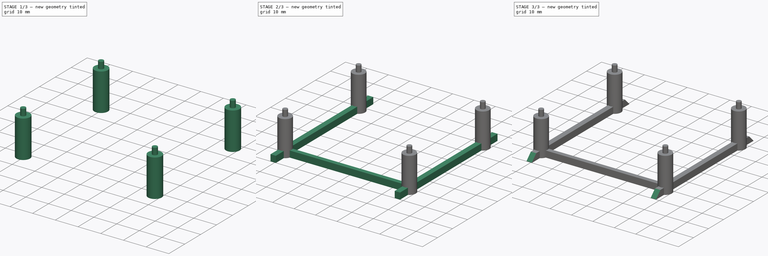
[diagram: build sequence overview — one tinted view per stage of 3, left to right]
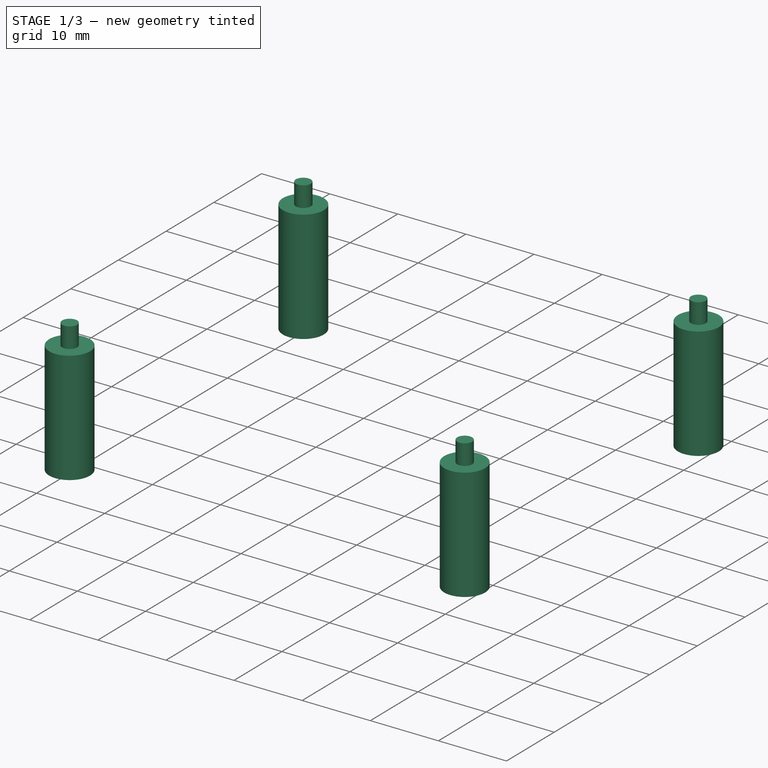
[diagram: stage 1 of 3 — iso view after this stage's code; geometry added in this stage tinted green]
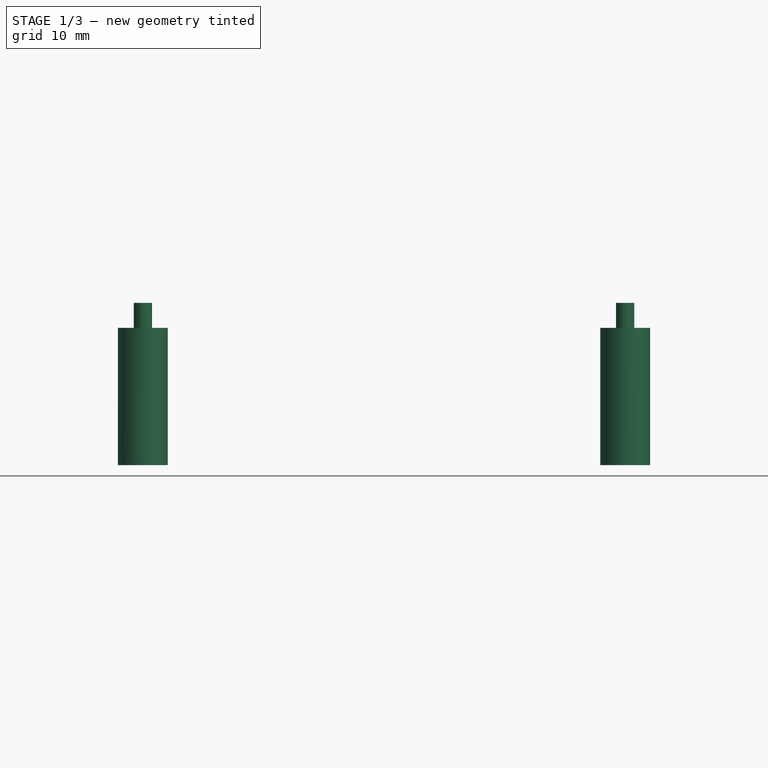
[diagram: stage 1 of 3 — front view after this stage's code; geometry added in this stage tinted green]
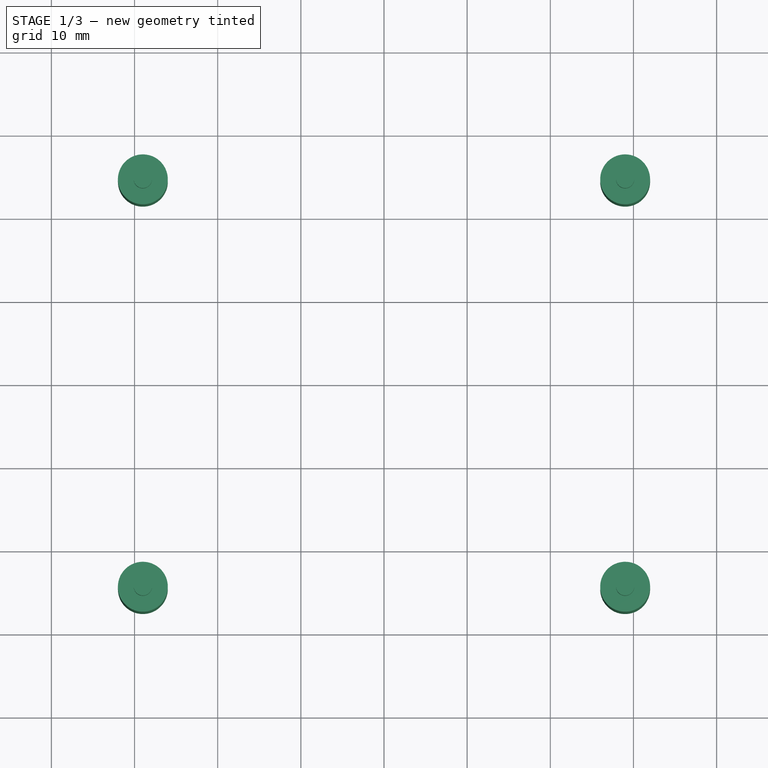
[diagram: stage 1 of 3 — top view after this stage's code; geometry added in this stage tinted green]
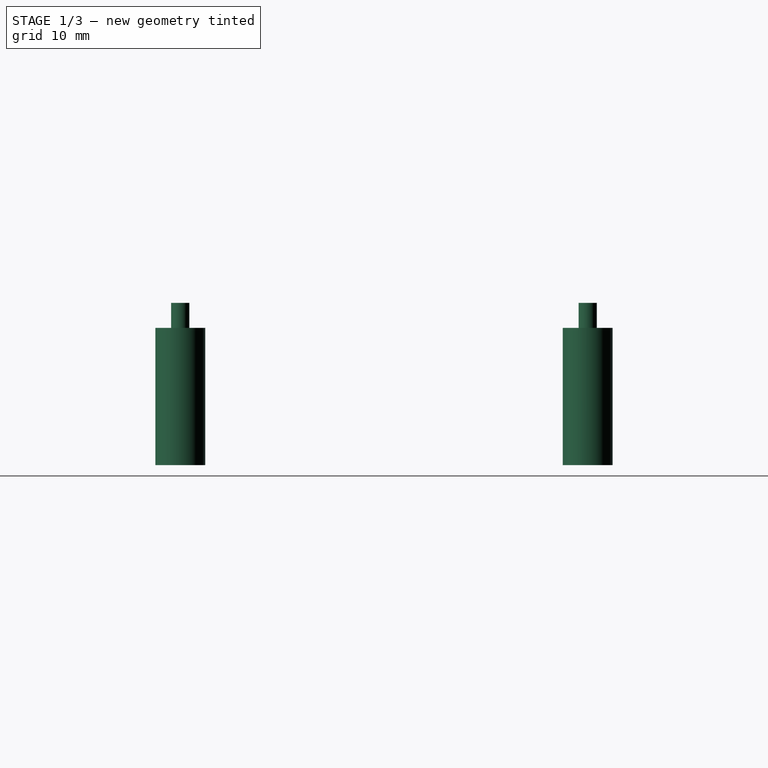
[diagram: stage 1 of 3 — right view after this stage's code; geometry added in this stage tinted green]
FCSTD DOCUMENT  (FreeCAD 0.16R6703 (Git))
Label: abstandh
License: All rights reserved
LicenseURL: http://en.wikipedia.org/wiki/All_rights_reserved
objects: Sketcher::SketchObject×3, PartDesign::Pad×3, Part::MultiFuse×1, PartDesign::Chamfer×1
note: 11 computed .brp shape members not serialized (recipe doc carries the construction recipe); baked Part::Feature solids carry a one-line shape summary decoded from their .brp

FEATURE [PartDesign::Pad] Pad001
  Length = 16.5
  Length2 = 100
  Sketch = -> Sketch001
  Type = 0
FEATURE [Sketcher::SketchObject] Sketch002
  sketch-geometry (4):
    g0: Circle CenterX=-29 CenterY=24.5 CenterZ=0 NormalX=0 NormalY=0 NormalZ=1 Radius=1.1
    g1: Circle CenterX=-29 CenterY=-24.5 CenterZ=0 NormalX=0 NormalY=0 NormalZ=1 Radius=1.1
    g2: Circle CenterX=29 CenterY=-24.5 CenterZ=0 NormalX=0 NormalY=0 NormalZ=1 Radius=1.1
    g3: Circle CenterX=29 CenterY=24.5 CenterZ=0 NormalX=0 NormalY=0 NormalZ=1 Radius=1.1
  constraints (10):
    c: Symmetric(g0,g3,g-2)
    c: DistanceY(g1,g2) = 0
    c: Symmetric(g1,g0,g-1)
    c: Symmetric(g3,g2,g-1)
    c: DistanceX(g0,g3) = 58
    c: DistanceY(g2,g3) = 49
    c: Equal(g1,g2)
    c: Equal(g2,g3)
    c: Equal(g3,g0)
    c: Radius(g3) = 1.1
FEATURE [PartDesign::Pad] Pad002
  Length = 19.5
  Length2 = 100
  Sketch = -> Sketch002
  Type = 0
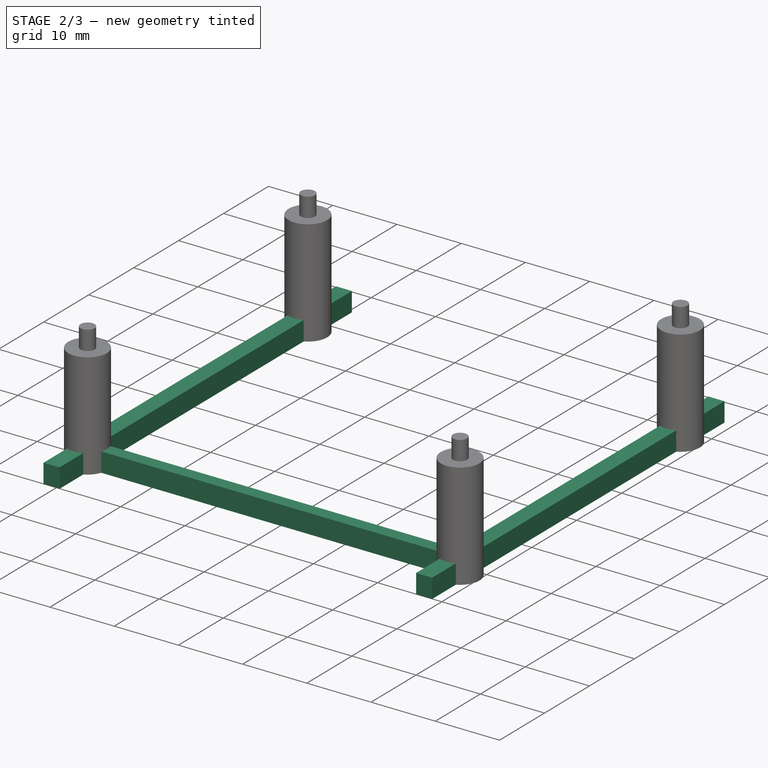
[diagram: stage 2 of 3 — iso view after this stage's code; geometry added in this stage tinted green]
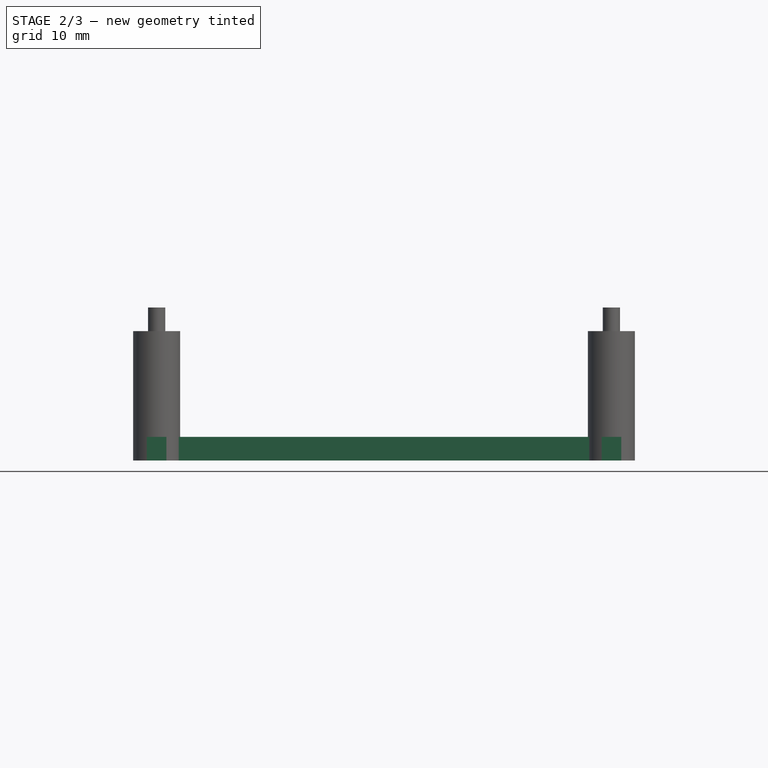
[diagram: stage 2 of 3 — front view after this stage's code; geometry added in this stage tinted green]
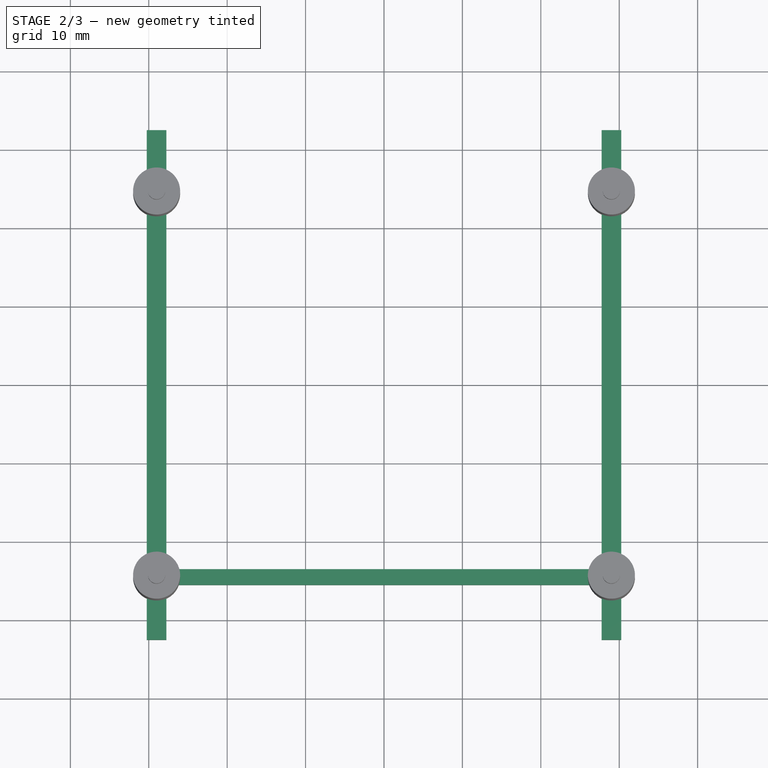
[diagram: stage 2 of 3 — top view after this stage's code; geometry added in this stage tinted green]
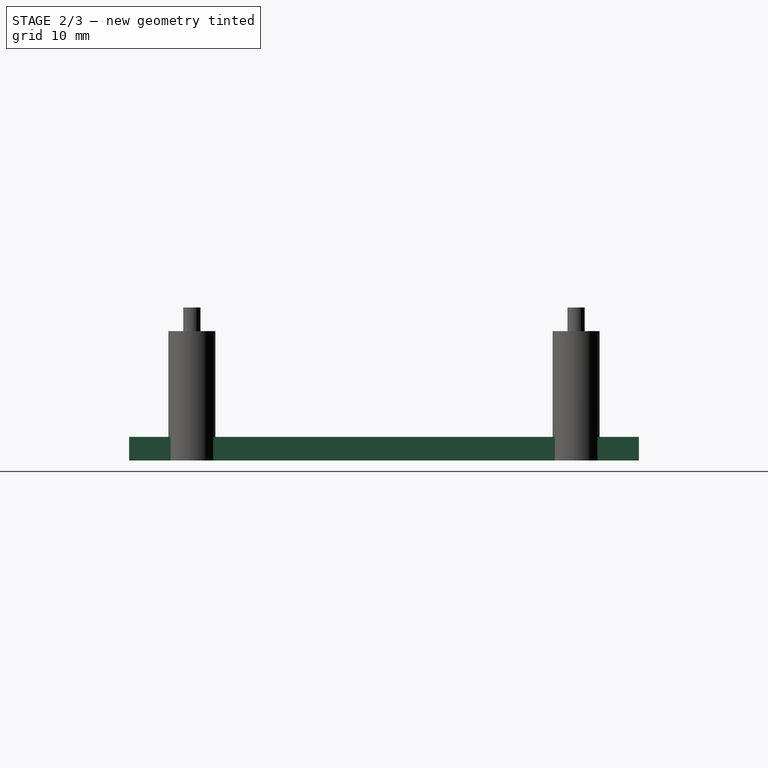
[diagram: stage 2 of 3 — right view after this stage's code; geometry added in this stage tinted green]
FEATURE [Sketcher::SketchObject] Sketch
  sketch-geometry (12):
    g0: LineSegment StartX=-30.25 StartY=32.5 StartZ=0 EndX=-27.75 EndY=32.5 EndZ=0
    g1: LineSegment StartX=-27.75 StartY=32.5 StartZ=0 EndX=-27.75 EndY=-32.5 EndZ=0
    g2: LineSegment StartX=-27.75 StartY=-32.5 StartZ=0 EndX=-30.25 EndY=-32.5 EndZ=0
    g3: LineSegment StartX=-30.25 StartY=-32.5 StartZ=0 EndX=-30.25 EndY=32.5 EndZ=0
    g4: LineSegment StartX=27.75 StartY=32.5 StartZ=0 EndX=30.25 EndY=32.5 EndZ=0
    g5: LineSegment StartX=30.25 StartY=32.5 StartZ=0 EndX=30.25 EndY=-32.5 EndZ=0
    g6: LineSegment StartX=30.25 StartY=-32.5 StartZ=0 EndX=27.75 EndY=-32.5 EndZ=0
    g7: LineSegment StartX=27.75 StartY=-32.5 StartZ=0 EndX=27.75 EndY=32.5 EndZ=0
    g8: LineSegment StartX=-27.75 StartY=-23.5 StartZ=0 EndX=27.75 EndY=-23.5 EndZ=0
    g9: LineSegment StartX=27.75 StartY=-23.5 StartZ=0 EndX=27.75 EndY=-25.5 EndZ=0
    g10: LineSegment StartX=27.75 StartY=-25.5 StartZ=0 EndX=-27.75 EndY=-25.5 EndZ=0
    g11: LineSegment StartX=-27.75 StartY=-25.5 StartZ=0 EndX=-27.75 EndY=-23.5 EndZ=0
  constraints (35):
    c: Coincident(g0,g1)
    c: Coincident(g1,g2)
    c: Coincident(g2,g3)
    c: Coincident(g3,g0)
    c: Horizontal(g0)
    c: Horizontal(g2)
    c: Vertical(g1)
    c: Vertical(g3)
    c: Coincident(g4,g5)
    c: Coincident(g5,g6)
    c: Coincident(g6,g7)
    c: Coincident(g7,g4)
    c: Horizontal(g4)
    c: Horizontal(g6)
    c: Vertical(g5)
    c: Vertical(g7)
    c: Coincident(g8,g9)
    c: Coincident(g9,g10)
    c: Coincident(g10,g11)
    c: Coincident(g11,g8)
    c: Horizontal(g8)
    c: Horizontal(g10)
    c: Vertical(g9)
    c: Vertical(g11)
    c: PointOnObject(g9,g7)
    c: PointOnObject(g8,g1)
    c: Symmetric(g0,g4,g-2)
    c: Symmetric(g0,g4,g-2)
    c: Symmetric(g5,g4,g-1)
    c: Equal(g5,g3)
    c: DistanceX(g6,g5) = 2.5
    c: DistanceY(g2,g0) = 65
    c: DistanceY(g8,g-1) = 23.5
    c: DistanceY(g10,g8) = 2
    c: DistanceX(g1,g6) = 55.5
FEATURE [Sketcher::SketchObject] Sketch001
  sketch-geometry (4):
    g0: Circle CenterX=-29 CenterY=24.5 CenterZ=0 NormalX=0 NormalY=0 NormalZ=1 Radius=3
    g1: Circle CenterX=-29 CenterY=-24.5 CenterZ=0 NormalX=0 NormalY=0 NormalZ=1 Radius=3
    g2: Circle CenterX=29 CenterY=-24.5 CenterZ=0 NormalX=0 NormalY=0 NormalZ=1 Radius=3
    g3: Circle CenterX=29 CenterY=24.5 CenterZ=0 NormalX=0 NormalY=0 NormalZ=1 Radius=3
  constraints (10):
    c: Symmetric(g0,g3,g-2)
    c: DistanceY(g1,g2) = 0
    c: Symmetric(g1,g0,g-1)
    c: Symmetric(g3,g2,g-1)
    c: DistanceX(g0,g3) = 58
    c: DistanceY(g2,g3) = 49
    c: Equal(g1,g2)
    c: Equal(g2,g3)
    c: Equal(g3,g0)
    c: Radius(g3) = 3
FEATURE [PartDesign::Pad] Pad
  Length = 3
  Length2 = 100
  Sketch = -> Sketch
  Type = 0
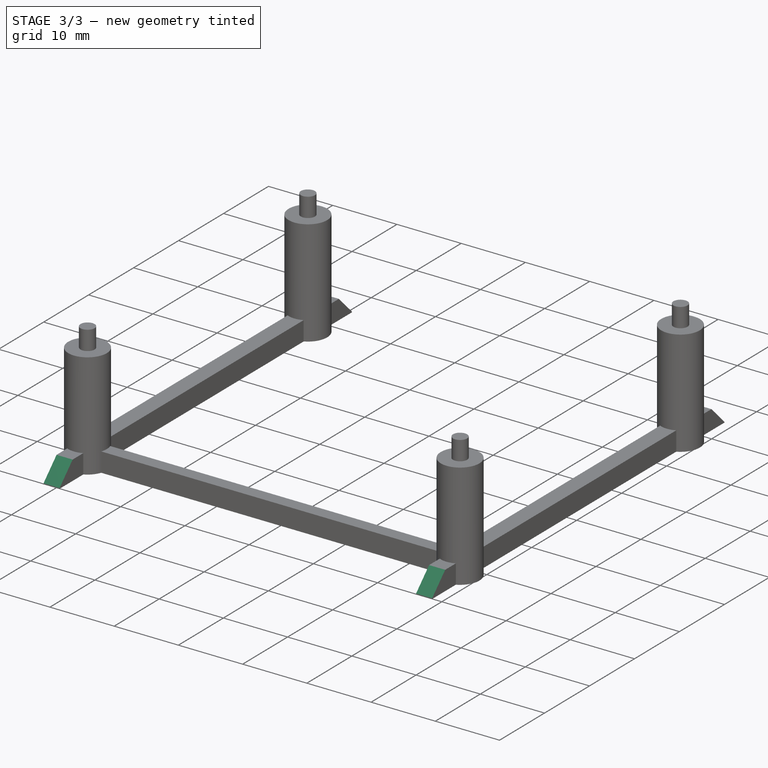
[diagram: stage 3 of 3 — iso view after this stage's code; geometry added in this stage tinted green]
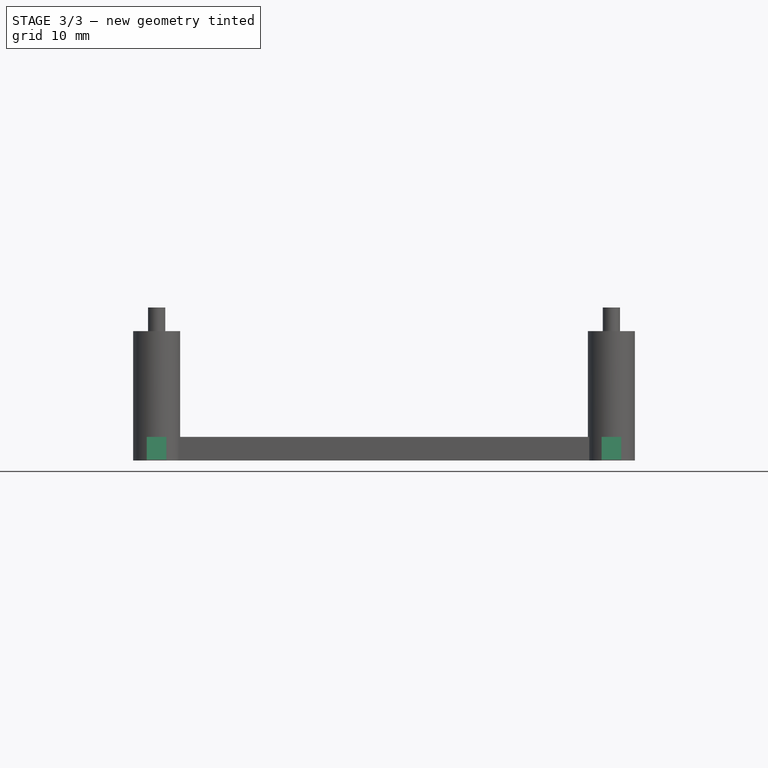
[diagram: stage 3 of 3 — front view after this stage's code; geometry added in this stage tinted green]
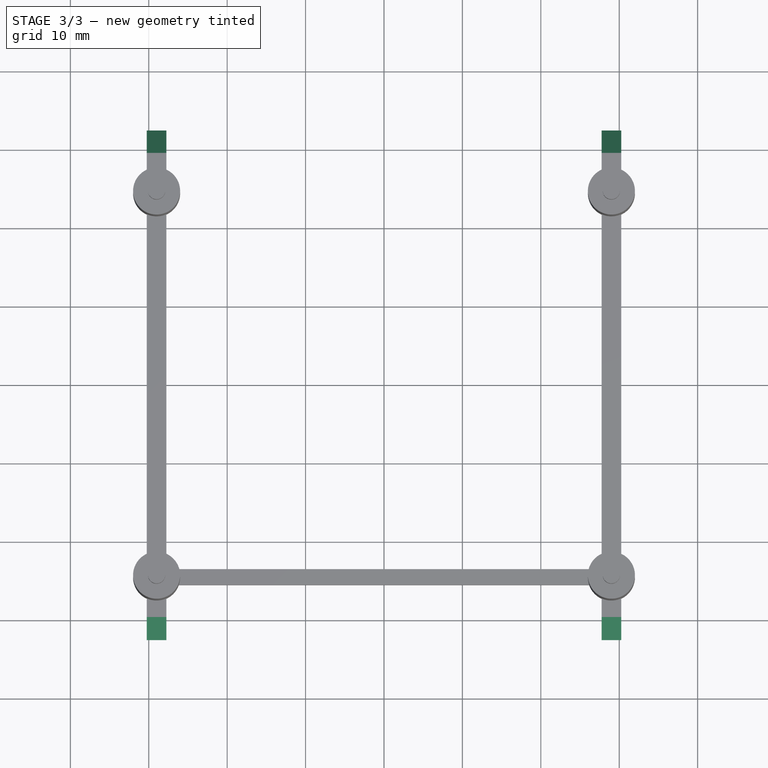
[diagram: stage 3 of 3 — top view after this stage's code; geometry added in this stage tinted green]
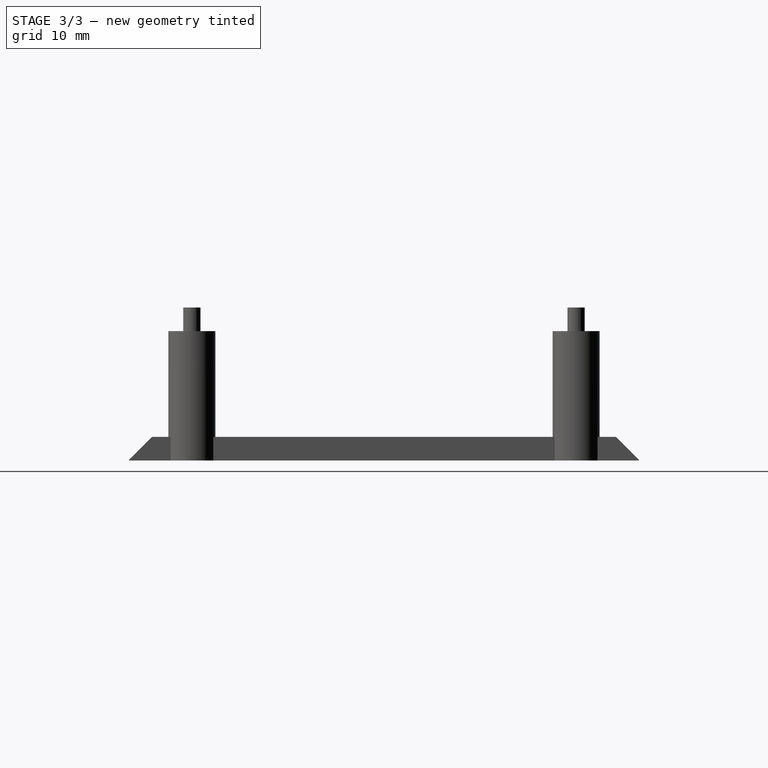
[diagram: stage 3 of 3 — right view after this stage's code; geometry added in this stage tinted green]
FEATURE [Part::MultiFuse] Fusion
  Shapes = -> [Pad,Pad001,Pad002]
FEATURE [PartDesign::Chamfer] Chamfer
  Base = -> Fusion [Edge130,Edge4,Edge104,Edge67]
  Size = 2.9
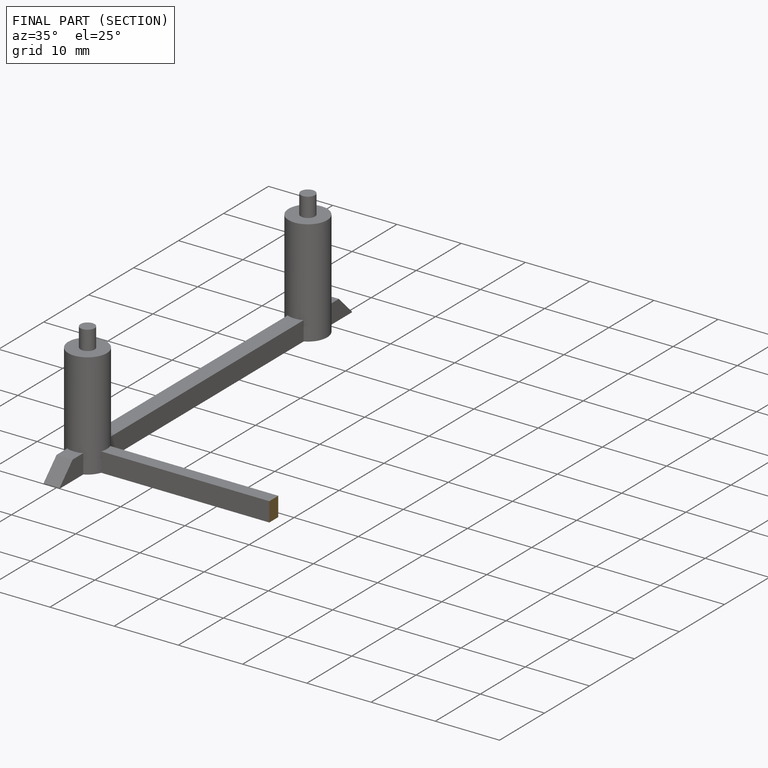
[diagram: finished part — half-section view (interior)]
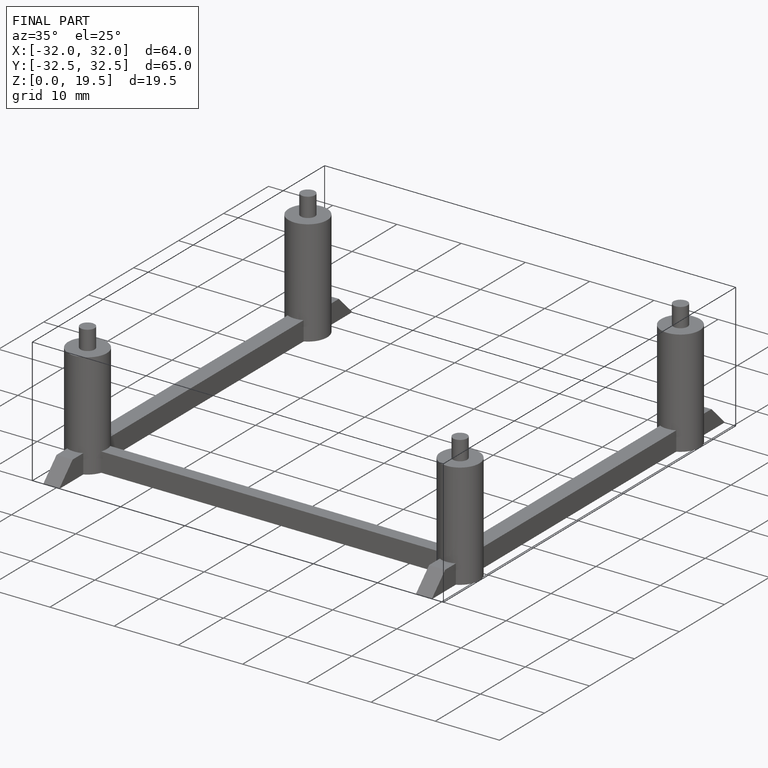
[diagram: finished part — iso view with bounding-box wireframe]
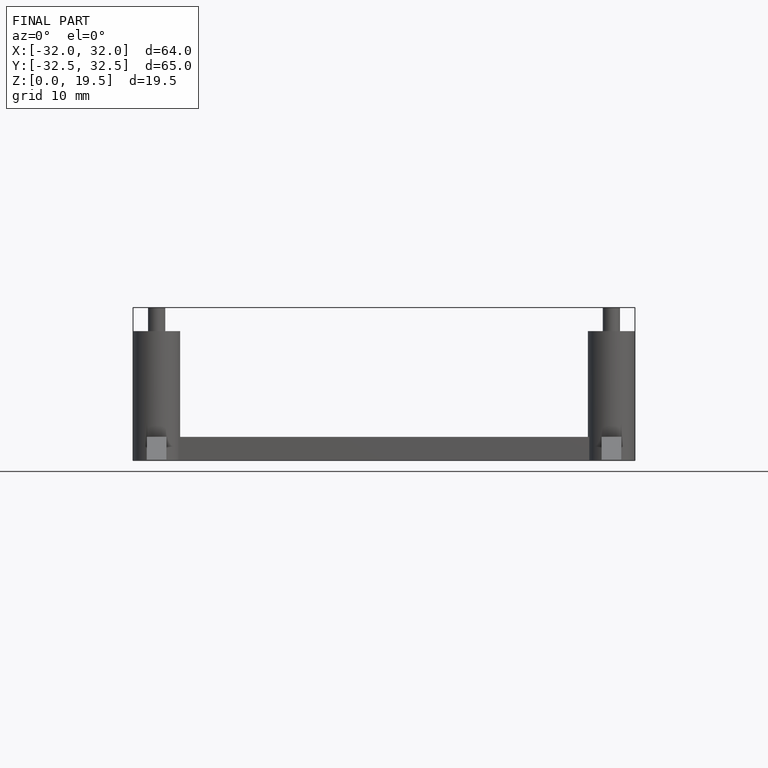
[diagram: finished part — front view with bounding-box wireframe]
